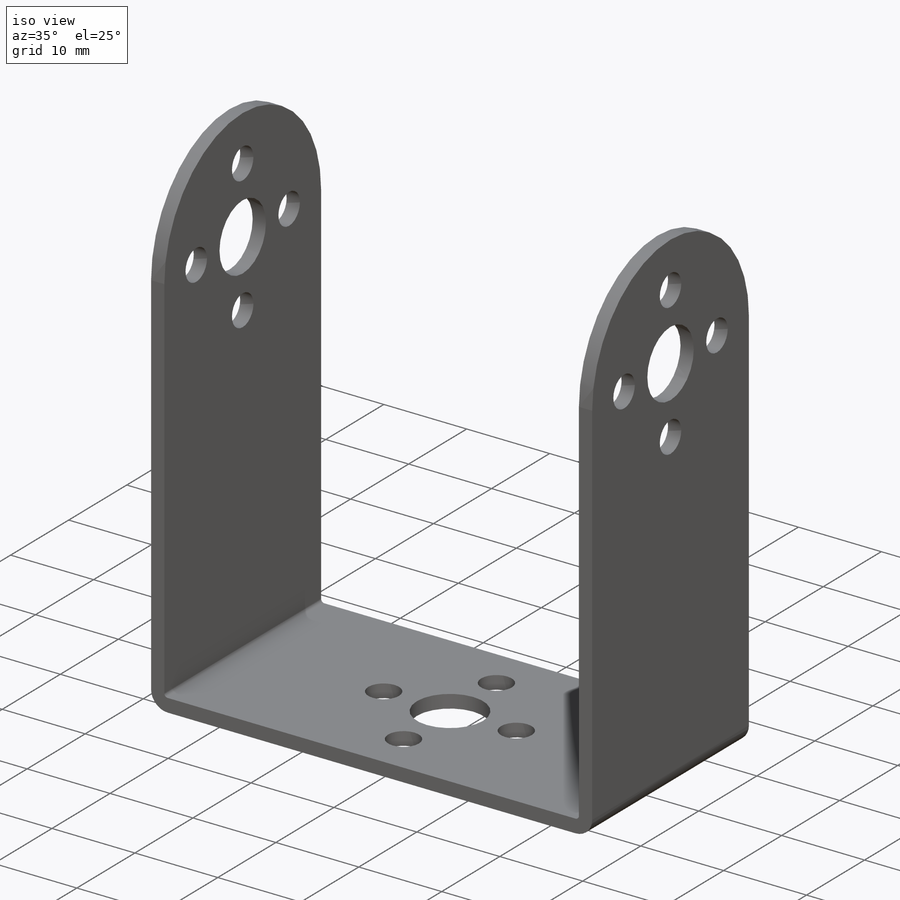
[diagram: iso view]
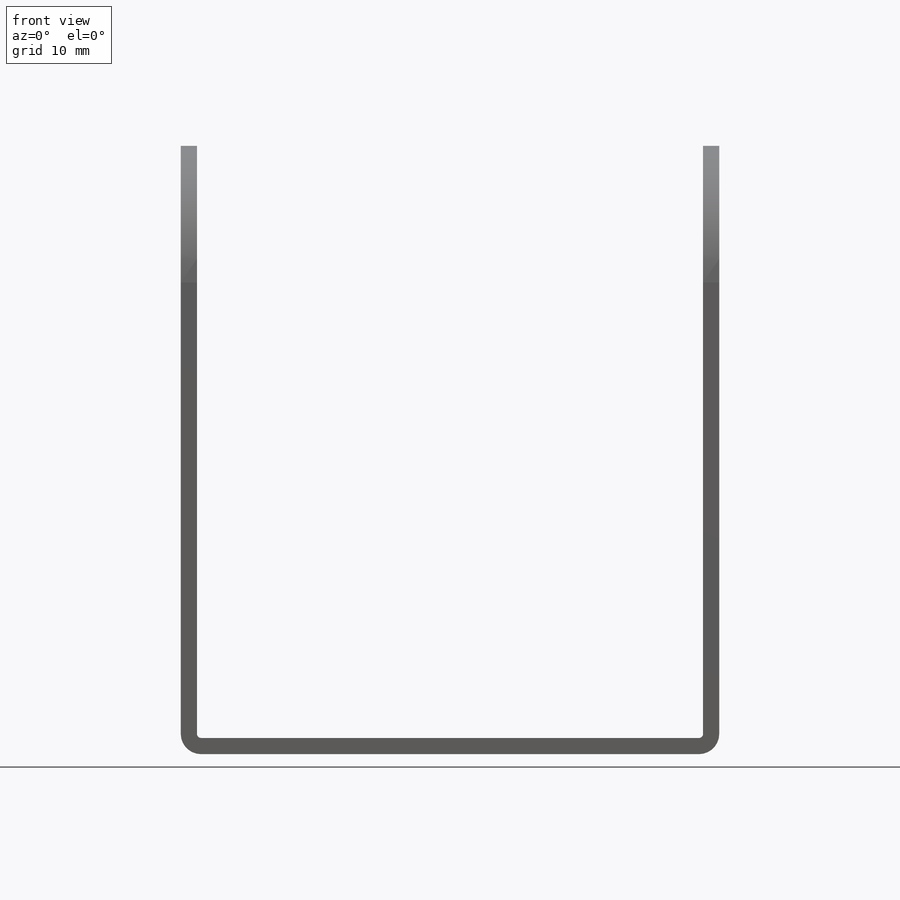
[diagram: front view]
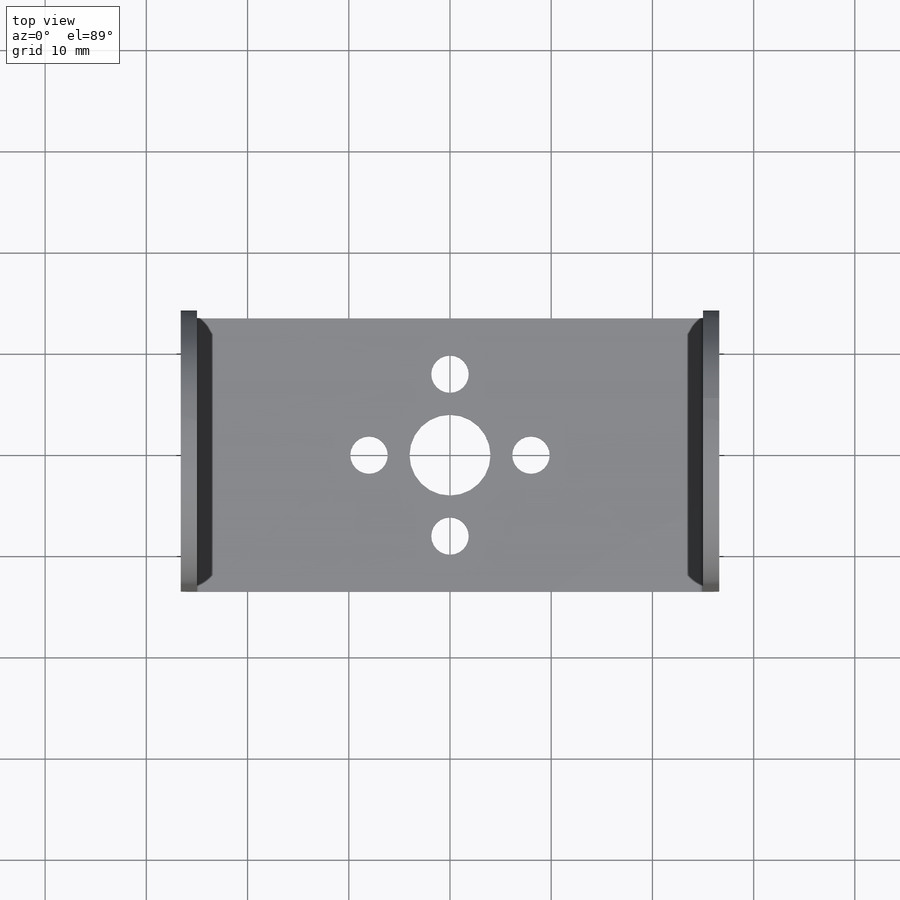
[diagram: top view]
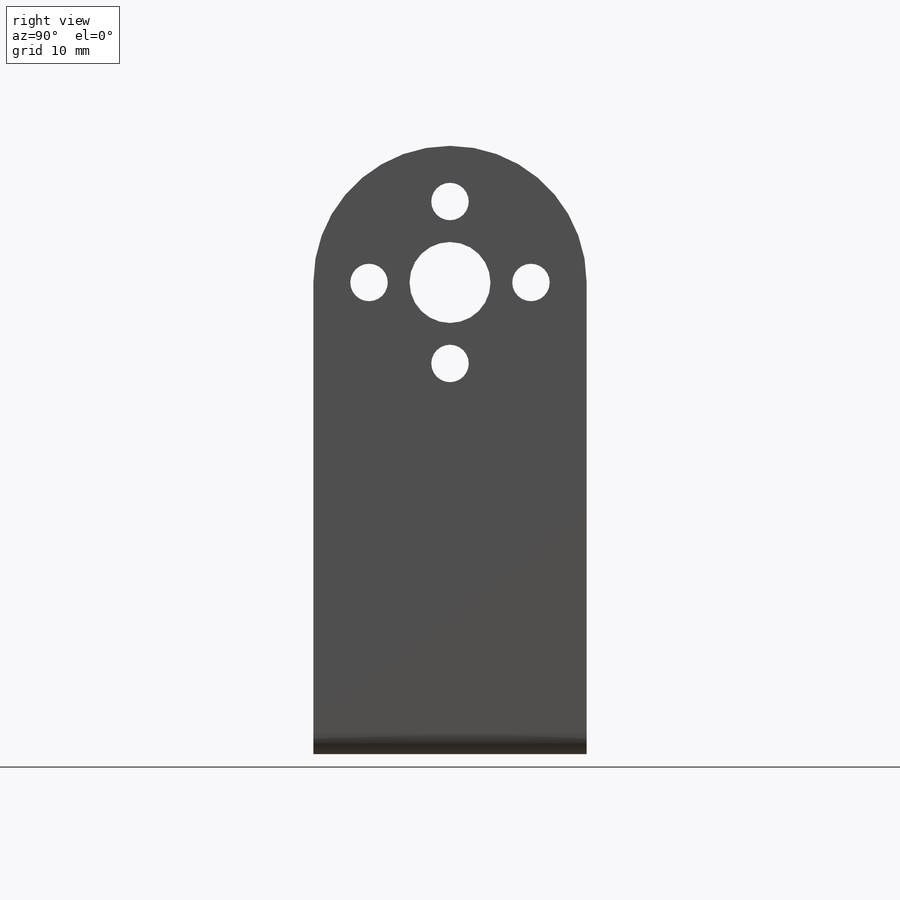
[diagram: right view]
SOLIDWORKS PART (.sldprt)
format: sldprt  version: not decoded by parser v0  size: 391,168 bytes
history: native  units: mm
features: sketch x3, fillet x2, cut_extrude x2, pattern_circular x2, material x1, extrude x1 (+17 scaffold rows collapsed)
feature tree (28):
  scaffold x17  (default folders/planes/origin — collapsed)
  material  "Material <not specified>"
  sketch  "Sketch1"  dims[D7=2.0mm D8=0.4mm D1=1.6mm D2=1.6mm D3=53.2mm D4=1.6mm D5=60.1mm D6=60.1mm]
  extrude  "Extrude1"  Depth=27mm
  fillet  "Fillet8"  [1 undecoded]
  fillet  "Fillet9"  [1 undecoded]
  sketch  "Sketch3"  dims[c1.D1=3.7mm c1.D2=8.0mm c1.D3=16.0mm c2.D1=46.6mm c2.D2=13.5mm c2.D3=~46.220807mm]
  cut_extrude  "Cut-Extrude1"  [1 undecoded]
  sketch  "Sketch4"  dims[D1=26.6mm D2=13.5mm]
  cut_extrude  "Cut-Extrude2"  Depth=27mm
  pattern_circular  "CirPattern1"  Count=4 Angle=90deg
  pattern_circular  "CirPattern2"  Count=4 Angle=90deg
decode coverage: 7 of 10 modeling features carry decoded parameters
note: ~ marks probable driven/reference dimensions
note: 3 parameter values undecoded
summary: no parameter record found for 3 features
note: suppression state not decoded; provenance and decode notes live in map.json
